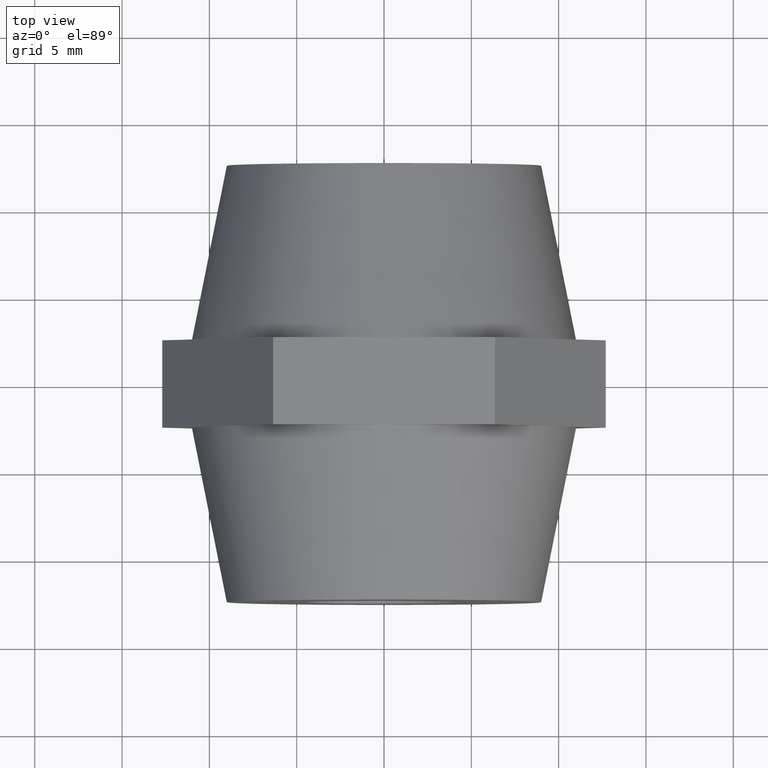
[diagram: clean part render]
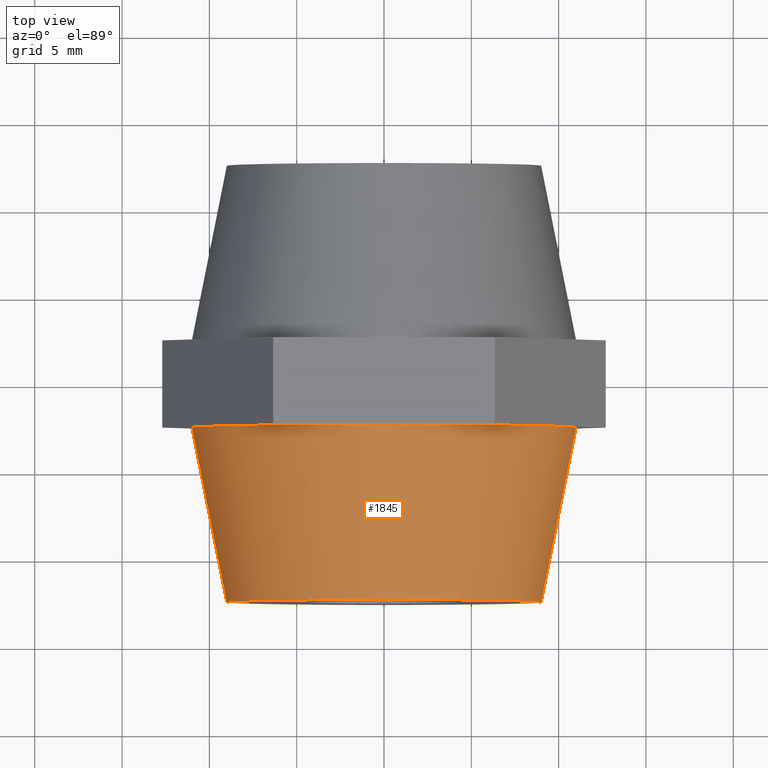
[diagram: same view with one face highlighted and labeled with its STEP entity id]
A machine part, top view. The second image highlights one B-rep face of the part: STEP entity #1845.
In plain terms, the highlighted conical surface has half-angle 11.31 deg.
Its self-contained STEP definition (entity closure, byte-faithful):
#37 = DIRECTION ( 'NONE',  ( 0.0000000000000000000, 0.0000000000000000000, 1.000000000000000000 ) ) ;
#175 = EDGE_LOOP ( 'NONE', ( #2335, #2640, #1548, #3405, #3261, #652, #879 ) ) ;
#248 = DIRECTION ( 'NONE',  ( 0.0000000000000000000, 0.0000000000000000000, 1.000000000000000000 ) ) ;
#267 = AXIS2_PLACEMENT_3D ( 'NONE', #2100, #926, #3239 ) ;
#301 = VERTEX_POINT ( 'NONE', #675 ) ;
#316 = DIRECTION ( 'NONE',  ( -1.224646799147352000E-016, 1.000000000000000000, 0.0000000000000000000 ) ) ;
#339 = VERTEX_POINT ( 'NONE', #2176 ) ;
#356 = CIRCLE ( 'NONE', #1846, 11.00000000000000000 ) ;
#375 = CIRCLE ( 'NONE', #267, 11.00000000000000000 ) ;
#392 = VECTOR ( 'NONE', #716, 1000.000000000000100 ) ;
#485 = VERTEX_POINT ( 'NONE', #2240 ) ;
#652 = ORIENTED_EDGE ( 'NONE', *, *, #3636, .F. ) ;
#675 = CARTESIAN_POINT ( 'NONE',  ( 1.836970198721030000E-015, -2.500000000000000000, 11.00000000000000000 ) ) ;
#716 = DIRECTION ( 'NONE',  ( -0.1961161351381841600, 0.9805806756909201100, 0.0000000000000000000 ) ) ;
#772 = CARTESIAN_POINT ( 'NONE',  ( 11.00000000000000200, -2.499999999999998700, 1.347111479062088400E-015 ) ) ;
#862 = DIRECTION ( 'NONE',  ( -1.000000000000000000, -1.927470528863119000E-016, 0.0000000000000000000 ) ) ;
#879 = ORIENTED_EDGE ( 'NONE', *, *, #3269, .F. ) ;
#912 = DIRECTION ( 'NONE',  ( -1.000000000000000000, -1.182766006347823100E-016, 0.0000000000000000000 ) ) ;
#925 = DIRECTION ( 'NONE',  ( -1.224646799147352000E-016, 1.000000000000000000, 0.0000000000000000000 ) ) ;
#926 = DIRECTION ( 'NONE',  ( 0.0000000000000000000, 1.000000000000000000, 0.0000000000000000000 ) ) ;
#929 = AXIS2_PLACEMENT_3D ( 'NONE', #2023, #316, #862 ) ;
#1004 = CARTESIAN_POINT ( 'NONE',  ( -8.999999999999996400, -12.50000000000000200, 0.0000000000000000000 ) ) ;
#1070 = DIRECTION ( 'NONE',  ( 0.1961161351381839600, 0.9805806756909202200, 2.401729971581268900E-017 ) ) ;
#1130 = CARTESIAN_POINT ( 'NONE',  ( 1.836970198721030000E-015, -2.500000000000000000, 2.694222958124174500E-016 ) ) ;
#1149 = FACE_OUTER_BOUND ( 'NONE', #175, .T. ) ;
#1336 = VERTEX_POINT ( 'NONE', #2450 ) ;
#1357 = EDGE_CURVE ( 'NONE', #2435, #485, #2555, .T. ) ;
#1483 = CARTESIAN_POINT ( 'NONE',  ( 1.836970198721030000E-015, -2.500000000000000000, 0.0000000000000000000 ) ) ;
#1548 = ORIENTED_EDGE ( 'NONE', *, *, #3770, .F. ) ;
#1556 = CIRCLE ( 'NONE', #3546, 11.00000000000000000 ) ;
#1606 = CARTESIAN_POINT ( 'NONE',  ( 1.836970198721030000E-015, -2.500000000000000000, 0.0000000000000000000 ) ) ;
#1796 = DIRECTION ( 'NONE',  ( 0.0000000000000000000, 1.000000000000000000, 0.0000000000000000000 ) ) ;
#1845 = ADVANCED_FACE ( 'NONE', ( #1149 ), #2965, .T. ) ;
#1846 = AXIS2_PLACEMENT_3D ( 'NONE', #1606, #3663, #1912 ) ;
#1912 = DIRECTION ( 'NONE',  ( -1.000000000000000000, -1.182766006347823100E-016, 0.0000000000000000000 ) ) ;
#2013 = LINE ( 'NONE', #772, #3422 ) ;
#2023 = CARTESIAN_POINT ( 'NONE',  ( 3.061616997868384600E-015, -12.50000000000000000, 0.0000000000000000000 ) ) ;
#2042 = DIRECTION ( 'NONE',  ( 0.0000000000000000000, 1.000000000000000000, 0.0000000000000000000 ) ) ;
#2100 = CARTESIAN_POINT ( 'NONE',  ( 1.836970198721030000E-015, -2.500000000000000000, 2.694222958124174500E-016 ) ) ;
#2113 = VERTEX_POINT ( 'NONE', #2430 ) ;
#2176 = CARTESIAN_POINT ( 'NONE',  ( -10.99999999999999800, -2.500000000000000000, 0.0000000000000000000 ) ) ;
#2240 = CARTESIAN_POINT ( 'NONE',  ( 9.000000000000003600, -12.49999999999999800, 1.224646799147353300E-015 ) ) ;
#2335 = ORIENTED_EDGE ( 'NONE', *, *, #1357, .T. ) ;
#2430 = CARTESIAN_POINT ( 'NONE',  ( 11.00000000000000200, -2.500000000000000000, 1.347111479062088400E-015 ) ) ;
#2435 = VERTEX_POINT ( 'NONE', #1004 ) ;
#2450 = CARTESIAN_POINT ( 'NONE',  ( 9.526279441628831900, -2.500000000000000000, 5.500000000000000000 ) ) ;
#2492 = CARTESIAN_POINT ( 'NONE',  ( -10.99999999999999800, -2.500000000000001300, 0.0000000000000000000 ) ) ;
#2555 = CIRCLE ( 'NONE', #929, 9.000000000000000000 ) ;
#2558 = LINE ( 'NONE', #2492, #392 ) ;
#2596 = AXIS2_PLACEMENT_3D ( 'NONE', #3296, #1796, #37 ) ;
#2640 = ORIENTED_EDGE ( 'NONE', *, *, #2738, .T. ) ;
#2689 = AXIS2_PLACEMENT_3D ( 'NONE', #1483, #925, #912 ) ;
#2706 = CARTESIAN_POINT ( 'NONE',  ( -9.526279441628821200, -2.500000000000000000, 5.500000000000000000 ) ) ;
#2738 = EDGE_CURVE ( 'NONE', #485, #2113, #2013, .T. ) ;
#2965 = CONICAL_SURFACE ( 'NONE', #2689, 11.00000000000000000, 0.1973955598498807800 ) ;
#3120 = EDGE_CURVE ( 'NONE', #301, #1336, #3152, .T. ) ;
#3152 = CIRCLE ( 'NONE', #2596, 11.00000000000000000 ) ;
#3160 = VERTEX_POINT ( 'NONE', #2706 ) ;
#3239 = DIRECTION ( 'NONE',  ( 0.0000000000000000000, 0.0000000000000000000, 1.000000000000000000 ) ) ;
#3261 = ORIENTED_EDGE ( 'NONE', *, *, #3274, .F. ) ;
#3269 = EDGE_CURVE ( 'NONE', #2435, #339, #2558, .T. ) ;
#3274 = EDGE_CURVE ( 'NONE', #3160, #301, #356, .T. ) ;
#3296 = CARTESIAN_POINT ( 'NONE',  ( 1.836970198721030000E-015, -2.500000000000000000, 2.694222958124174500E-016 ) ) ;
#3405 = ORIENTED_EDGE ( 'NONE', *, *, #3120, .F. ) ;
#3422 = VECTOR ( 'NONE', #1070, 1000.000000000000000 ) ;
#3546 = AXIS2_PLACEMENT_3D ( 'NONE', #1130, #2042, #248 ) ;
#3636 = EDGE_CURVE ( 'NONE', #339, #3160, #1556, .T. ) ;
#3663 = DIRECTION ( 'NONE',  ( -1.224646799147352000E-016, 1.000000000000000000, 0.0000000000000000000 ) ) ;
#3770 = EDGE_CURVE ( 'NONE', #1336, #2113, #375, .T. ) ;